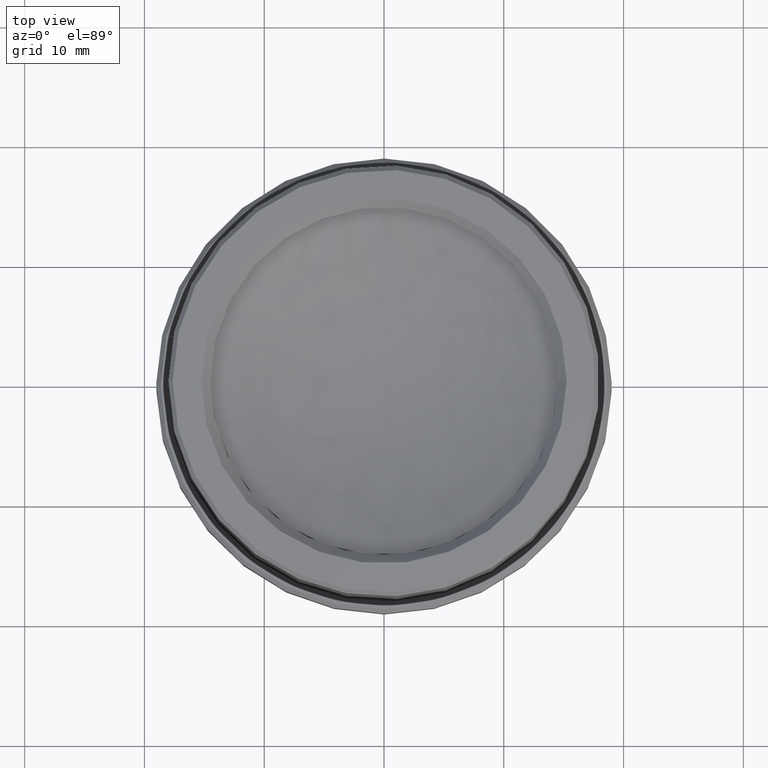
[diagram: clean part render]
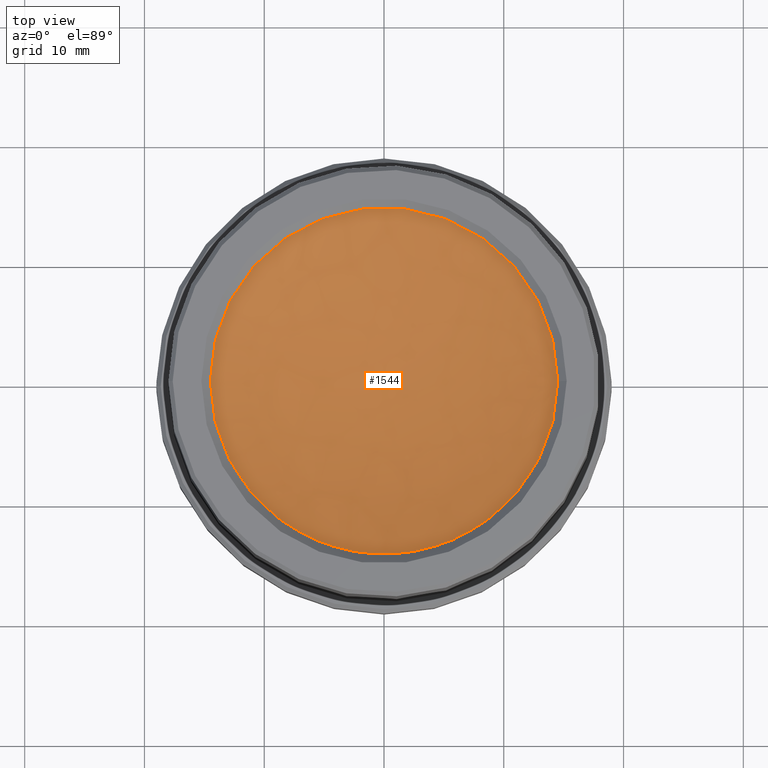
[diagram: same view with one face highlighted and labeled with its STEP entity id]
A machine part, top view. The second image highlights one B-rep face of the part: STEP entity #1544.
In plain terms, the highlighted face is a freeform B-spline surface patch.
Its self-contained STEP definition (entity closure, byte-faithful):
#4 = CARTESIAN_POINT ( 'NONE',  ( 14.59987818712144048, 0.1098719091731127362, 4.598656149939055915 ) ) ;
#11 = CARTESIAN_POINT ( 'NONE',  ( 13.03766404823993241, -6.575546836098879133, 4.598540953532084252 ) ) ;
#13 = CARTESIAN_POINT ( 'NONE',  ( -5.524749319698513794, 13.51436039450258519, 4.598515689413817498 ) ) ;
#21 = CARTESIAN_POINT ( 'NONE',  ( 14.00681559300930346, 4.120100680398201654, 4.598583442719370140 ) ) ;
#29 = CARTESIAN_POINT ( 'NONE',  ( -8.903089966050458770, 11.58088410843833138, 4.598492803776356830 ) ) ;
#34 = CARTESIAN_POINT ( 'NONE',  ( 7.304584570685939582, 12.65072442877180769, 4.598690575416188864 ) ) ;
#43 = CARTESIAN_POINT ( 'NONE',  ( -4.817865857052162859, 13.78559794277003547, 4.598500409480632101 ) ) ;
#46 = CARTESIAN_POINT ( 'NONE',  ( 13.61529103066360591, 5.271427889979172221, 4.598517755665792350 ) ) ;
#52 = CARTESIAN_POINT ( 'NONE',  ( 14.20670203796747444, -3.367909879107047644, 4.598496266177536818 ) ) ;
#55 = CARTESIAN_POINT ( 'NONE',  ( -9.450776052748560474, 11.13093098415130555, 4.598499167541604038 ) ) ;
#63 = CARTESIAN_POINT ( 'NONE',  ( 11.00948562786289564, 9.592351682085356046, 4.598542120305389780 ) ) ;
#68 = CARTESIAN_POINT ( 'NONE',  ( 14.28427918963365073, -3.020500734490506378, 4.598507930116587872 ) ) ;
#81 = CARTESIAN_POINT ( 'NONE',  ( 14.44053562068691754, -2.152572433401920726, 4.598560837239604737 ) ) ;
#110 = CARTESIAN_POINT ( 'NONE',  ( 13.95586297800585740, -4.289328123124835024, 4.598586609276892112 ) ) ;
#123 = CARTESIAN_POINT ( 'NONE',  ( 14.52064795808766817, 1.524627165844218535, 4.598591372268823640 ) ) ;
#174 = CARTESIAN_POINT ( 'NONE',  ( 14.59467593595175039, 0.3982335792210579539, 4.598535094778983812 ) ) ;
#179 = CARTESIAN_POINT ( 'NONE',  ( 9.442031574233713087, -11.13869698450888635, 4.598603359626703302 ) ) ;
#187 = CARTESIAN_POINT ( 'NONE',  ( 14.60005822248919749, 0.09506250477493423390, 4.598693951005267344 ) ) ;
#198 = FACE_OUTER_BOUND ( 'NONE', #1317, .T. ) ;
#203 = CARTESIAN_POINT ( 'NONE',  ( 14.44489739941179884, 2.123041479003394461, 4.598556108481317573 ) ) ;
#215 = CARTESIAN_POINT ( 'NONE',  ( 14.58420798197644963, 0.6802824436189760515, 4.598546234564357960 ) ) ;
#221 = CARTESIAN_POINT ( 'NONE',  ( 12.70457491541069928, -7.209996813314834441, 4.598551395020039401 ) ) ;
#224 = CARTESIAN_POINT ( 'NONE',  ( -3.808755321222869306, 14.10222328882930931, 4.598480782374682718 ) ) ;
#229 = CARTESIAN_POINT ( 'NONE',  ( 12.15130119218949822, 8.093573949494860642, 4.598516295474420090 ) ) ;
#236 = CARTESIAN_POINT ( 'NONE',  ( 12.44438069504907851, -7.655412235732524273, 4.598525398350337134 ) ) ;
#238 = CARTESIAN_POINT ( 'NONE',  ( -5.470940512643740483, 13.53623076055137453, 4.598514701226175561 ) ) ;
#245 = CARTESIAN_POINT ( 'NONE',  ( 13.33872966068041599, 5.949843725076407353, 4.598522857305908929 ) ) ;
#252 = CARTESIAN_POINT ( 'NONE',  ( -13.15038568650589390, -6.414122279579340891, 4.598610133474144490 ) ) ;
#260 = CARTESIAN_POINT ( 'NONE',  ( 13.98037488547468143, 4.208726043841942044, 4.598585988786896728 ) ) ;
#267 = CARTESIAN_POINT ( 'NONE',  ( -10.16774487261977811, 10.47772805272840202, 4.598513358064516332 ) ) ;
#271 = CARTESIAN_POINT ( 'NONE',  ( 13.97652199687717456, 4.221489475240501221, 4.598586020182444223 ) ) ;
#277 = CARTESIAN_POINT ( 'NONE',  ( 14.54444619280368478, -1.283548148800891298, 4.598589392100513429 ) ) ;
#287 = CARTESIAN_POINT ( 'NONE',  ( 0.005160834930813416356, 14.59999908786928025, 4.598516557663532289 ) ) ;
#294 = CARTESIAN_POINT ( 'NONE',  ( 14.23252240926370860, -3.256657079008932865, 4.598495585025937693 ) ) ;
#306 = CARTESIAN_POINT ( 'NONE',  ( 14.58572981244276612, -0.6515799999657583275, 4.598559561514189653 ) ) ;
#308 = CARTESIAN_POINT ( 'NONE',  ( -3.881806759331051460, -14.19726442437174185, 4.598545732425259658 ) ) ;
#319 = CARTESIAN_POINT ( 'NONE',  ( 14.59528607313195359, -0.3724633300664522140, 4.598534800062981986 ) ) ;
#329 = EDGE_CURVE ( 'NONE', #673, #1180, #565, .T. ) ;
#337 = CARTESIAN_POINT ( 'NONE',  ( 14.52490868798957102, -1.480399848870249446, 4.598588877081514426 ) ) ;
#362 = CARTESIAN_POINT ( 'NONE',  ( 0.9248576070312892750, -14.60000000000003340, 4.598516557663528737 ) ) ;
#385 = CARTESIAN_POINT ( 'NONE',  ( 14.59999188274770532, -0.02304323730480819024, 4.598517571693991890 ) ) ;
#392 = CARTESIAN_POINT ( 'NONE',  ( 7.311895011767521879, -12.67356833078919820, 4.598738370409213516 ) ) ;
#400 = CARTESIAN_POINT ( 'NONE',  ( 14.59834573250014245, -0.2272067419942964406, 4.598517024524018559 ) ) ;
#413 = CARTESIAN_POINT ( 'NONE',  ( 14.45125866144301696, 2.079437387572911522, 4.598557007942772223 ) ) ;
#422 = CARTESIAN_POINT ( 'NONE',  ( 13.47040337618714645, -5.631028487070569355, 4.598515997964312874 ) ) ;
#424 = CARTESIAN_POINT ( 'NONE',  ( 14.71761929755720644, 0.06068785505693927856, 4.656514888069945179 ) ) ;
#431 = CARTESIAN_POINT ( 'NONE',  ( 14.59920185898077349, 0.1564029259636597613, 4.598535001784714638 ) ) ;
#437 = CARTESIAN_POINT ( 'NONE',  ( 13.83827608740299908, -4.655893481129402822, 4.598567047210794456 ) ) ;
#439 = CARTESIAN_POINT ( 'NONE',  ( -8.521706113493378254, 11.86451576672056163, 4.598492459333527016 ) ) ;
#449 = CARTESIAN_POINT ( 'NONE',  ( 13.45317217763189355, -5.672146344439530807, 4.598515639794314325 ) ) ;
#451 = CARTESIAN_POINT ( 'NONE',  ( -6.379493726258334441, -13.13637127351659117, 4.598502094489019143 ) ) ;
#455 = CARTESIAN_POINT ( 'NONE',  ( 10.37376514325663734, 10.27355579893149518, 4.598515784245162941 ) ) ;
#465 = CARTESIAN_POINT ( 'NONE',  ( -3.348905923950477259, 14.21865660848581214, 4.598477032157465949 ) ) ;
#473 = CARTESIAN_POINT ( 'NONE',  ( 10.63633095824203778, 10.00280252400942516, 4.598520654622464399 ) ) ;
#478 = CARTESIAN_POINT ( 'NONE',  ( 11.46034044659293727, -9.048713529990788373, 4.598549025147234737 ) ) ;
#480 = CARTESIAN_POINT ( 'NONE',  ( -16.70499046038595026, -15.02309922724385061, -5.778333417743800382 ) ) ;
#487 = CARTESIAN_POINT ( 'NONE',  ( 12.40190531676616814, 7.706142390874858528, 4.598519350502367153 ) ) ;
#491 = CARTESIAN_POINT ( 'NONE',  ( 14.47944028093070479, -1.876462696205670966, 4.598536033749266672 ) ) ;
#497 = CARTESIAN_POINT ( 'NONE',  ( 14.06775755851724874, 3.907076147629254148, 4.598562929168755531 ) ) ;
#501 = CARTESIAN_POINT ( 'NONE',  ( 14.52706625001994567, -1.459047201071298039, 4.598590860625543009 ) ) ;
#517 = CARTESIAN_POINT ( 'NONE',  ( 14.05241491349262084, -3.971890810872934274, 4.598584301100816063 ) ) ;
#530 = CARTESIAN_POINT ( 'NONE',  ( 14.59510481208141996, -0.3792023569436870911, 4.598531232811095215 ) ) ;
#532 = CARTESIAN_POINT ( 'NONE',  ( -5.658037405817819554, -13.45910413111162462, 4.598515592439899713 ) ) ;
#545 = CARTESIAN_POINT ( 'NONE',  ( 13.96246342601231660, -4.267768480523966623, 4.598586691071909982 ) ) ;
#565 = B_SPLINE_CURVE_WITH_KNOTS ( 'NONE', 3,
 ( #1000, #362, #1444, #2072, #1014, #1036, #812, #1472, #1664, #771, #615, #2703, #1461, #392, #2099, #2715, #179, #789, #1235, #1884, #2741, #843, #1749, #964, #1721, #478, #1067, #2755, #1330, #642, #670, #659, #1926, #1298, #2187, #236, #221, #11, #1513, #1703, #2372, #1125, #449, #422, #2155, #1275, #2130, #1948, #1501, #2385, #437, #891, #2174, #1109, #110, #545, #973, #1820, #2669, #517, #1972, #52, #294, #1400, #68, #1181, #1764, #2232, #2031, #2623, #2201, #1372, #1140, #1164, #2611, #1989, #1550, #1777, #930, #81, #1789, #709, #491, #956, #2635, #1805, #2656, #337, #501, #2220, #743, #1341, #277, #2427, #1603, #1357, #721, #1151, #2003, #943, #1593, #1579, #2445, #306, #2245, #2014, #755, #2458, #2470, #2260, #530, #1385, #319, #2552, #400, #623, #2310, #1254, #865, #1921, #385, #1282, #1243, #187, #4, #2093, #1198, #431, #1878, #1061, #1896, #2324, #2539, #2566, #1480, #1468, #2107, #2530, #174, #1046, #1673, #2749, #767, #1684, #215, #1655, #610, #2733, #852, #2682, #2123, #2046, #2514, #2137, #652, #1072, #1714, #1507, #2337, #123, #822, #1911, #2364, #838, #597, #413, #1267, #203, #1031, #1985, #1697, #635, #1492, #2351, #986, #1833, #1086, #2619, #1784, #1939, #2605, #1546, #2150, #1728, #497, #664, #21, #1967, #260, #271, #885, #692, #1117, #2411, #2579, #715, #46, #2631, #1742, #1336, #1293, #2168, #1519, #245, #909, #1955, #2591, #704, #487, #1147, #2195, #937, #1347, #229, #1133, #1980, #1773, #2395, #63, #2380, #473, #1104, #1571, #455, #2211, #1306, #2182, #1999, #34, #899, #2422, #676, #926, #1757, #1532, #1559, #1323, #287 ),
 .UNSPECIFIED., .F., .F.,
 ( 4, 2, 2, 1, 1, 1, 2, 2, 2, 2, 1, 1, 1, 2, 2, 2, 2, 1, 1, 1, 1, 2, 2, 2, 2, 1, 1, 1, 1, 2, 2, 2, 2, 1, 1, 1, 1, 2, 2, 2, 2, 1, 1, 1, 1, 2, 2, 2, 1, 1, 1, 1, 2, 2, 2, 2, 1, 1, 1, 2, 2, 2, 2, 1, 1, 1, 2, 2, 2, 2, 1, 1, 2, 2, 2, 2, 2, 2, 2, 2, 2, 2, 2, 2, 1, 2, 2, 2, 2, 1, 1, 2, 2, 2, 2, 1, 1, 1, 2, 2, 2, 2, 1, 1, 1, 2, 2, 2, 1, 1, 1, 1, 2, 2, 2, 2, 1, 1, 1, 1, 2, 2, 2, 2, 1, 1, 1, 2, 2, 2, 2, 1, 1, 1, 1, 2, 2, 2, 2, 1, 1, 2, 2, 2, 2, 1, 1, 2, 2, 4 ),
 ( 0.000000000000000000, 0.06250000000000052736, 0.09375000000000079103, 0.1093750000000008882, 0.1171875000000009437, 0.1210937500000010270, 0.1230468750000010547, 0.1250000000000010825, 0.1875000000000044131, 0.2187500000000061062, 0.2343750000000069944, 0.2421875000000074662, 0.2460937500000076883, 0.2480468750000077438, 0.2500000000000078271, 0.2812500000000090483, 0.2968750000000096034, 0.3046875000000098255, 0.3085937500000100475, 0.3105468750000101585, 0.3115234375000102141, 0.3120117187500102696, 0.3125000000000103806, 0.3437500000000165978, 0.3593750000000197065, 0.3671875000000212053, 0.3710937500000219269, 0.3730468750000223155, 0.3740234375000224820, 0.3745117187500225375, 0.3750000000000225930, 0.3906250000000258127, 0.3984375000000274780, 0.4023437500000282552, 0.4042968750000286438, 0.4052734375000289213, 0.4057617187500290323, 0.4060058593750290323, 0.4062500000000290323, 0.4218750000000292544, 0.4296875000000293654, 0.4335937500000294209, 0.4355468750000294209, 0.4365234375000294209, 0.4370117187500293654, 0.4372558593750293099, 0.4375000000000293099, 0.4453125000000291989, 0.4492187500000291434, 0.4511718750000291434, 0.4521484375000290878, 0.4526367187500290878, 0.4528808593750290878, 0.4531250000000290878, 0.4609375000000296430, 0.4648437500000299205, 0.4667968750000300315, 0.4677734375000300870, 0.4682617187500301426, 0.4685058593750301981, 0.4687500000000302536, 0.4765625000000310307, 0.4804687500000314748, 0.4824218750000316414, 0.4833984375000317524, 0.4838867187500318634, 0.4841308593750318634, 0.4843750000000318634, 0.4882812500000322520, 0.4902343750000324740, 0.4912109375000325850, 0.4916992187500326406, 0.4919433593750326406, 0.4921875000000326406, 0.4960937500000330846, 0.4980468750000333622, 0.4990234375000334732, 0.5000000000000335287, 0.5019531250000337508, 0.5029296875000338618, 0.5034179687500338618, 0.5039062500000338618, 0.5058593750000340838, 0.5068359375000343059, 0.5073242187500344169, 0.5075683593750344169, 0.5078125000000344169, 0.5117187500000348610, 0.5136718750000350830, 0.5146484375000351941, 0.5151367187500351941, 0.5153808593750351941, 0.5156250000000351941, 0.5234375000000364153, 0.5273437500000369704, 0.5292968750000371925, 0.5302734375000373035, 0.5307617187500374145, 0.5310058593750374145, 0.5312500000000374145, 0.5390625000000383027, 0.5429687500000386358, 0.5449218750000388578, 0.5458984375000389688, 0.5463867187500390799, 0.5466308593750390799, 0.5468750000000390799, 0.5546875000000394129, 0.5585937500000396350, 0.5605468750000398570, 0.5615234375000398570, 0.5620117187500398570, 0.5622558593750398570, 0.5625000000000398570, 0.5781250000000394129, 0.5859375000000391909, 0.5898437500000390799, 0.5917968750000389688, 0.5927734375000388578, 0.5932617187500388578, 0.5935058593750388578, 0.5937500000000388578, 0.6093750000000391909, 0.6171875000000394129, 0.6210937500000394129, 0.6230468750000394129, 0.6240234375000394129, 0.6245117187500394129, 0.6250000000000395239, 0.6562500000000369704, 0.6718750000000357492, 0.6796875000000351941, 0.6835937500000348610, 0.6855468750000347500, 0.6865234375000346390, 0.6870117187500345279, 0.6875000000000344169, 0.7187500000000290878, 0.7343750000000264233, 0.7421875000000250910, 0.7460937500000246470, 0.7480468750000243139, 0.7500000000000239808, 0.8125000000000179856, 0.8437500000000149880, 0.8593750000000134337, 0.8671875000000127676, 0.8710937500000123235, 0.8750000000000119904, 1.000000000000000000 ),
 .UNSPECIFIED. ) ;
#597 = CARTESIAN_POINT ( 'NONE',  ( 14.45980983664423114, 2.019453768701706231, 4.598554121456699839 ) ) ;
#610 = CARTESIAN_POINT ( 'NONE',  ( 14.58314246620638777, 0.7032660545038603717, 4.598560486685258297 ) ) ;
#615 = CARTESIAN_POINT ( 'NONE',  ( 5.532977842985892458, -13.51099747840668996, 4.598515588655430086 ) ) ;
#623 = CARTESIAN_POINT ( 'NONE',  ( 14.59987045275621398, -0.1411392709652482813, 4.598774708344492090 ) ) ;
#628 = CARTESIAN_POINT ( 'NONE',  ( 14.71761847852395988, -0.06068584819828062860, 4.656514476766718147 ) ) ;
#635 = CARTESIAN_POINT ( 'NONE',  ( 14.40983694473248633, 2.351883133133127135, 4.598524106922837973 ) ) ;
#642 = CARTESIAN_POINT ( 'NONE',  ( 12.02519366123476274, -8.280115672775071545, 4.598516102352112611 ) ) ;
#644 = CARTESIAN_POINT ( 'NONE',  ( -10.62985472940839848, -10.00958914160398372, 4.598511271399827294 ) ) ;
#652 = CARTESIAN_POINT ( 'NONE',  ( 14.53649701092979640, 1.361656646653890412, 4.598570843421297738 ) ) ;
#659 = CARTESIAN_POINT ( 'NONE',  ( 12.10864933958182199, -8.157262007454361807, 4.598515951347961206 ) ) ;
#664 = CARTESIAN_POINT ( 'NONE',  ( 14.04068462623736835, 4.003858631365785570, 4.598574894296008964 ) ) ;
#670 = CARTESIAN_POINT ( 'NONE',  ( 12.08099642450160616, -8.198223665794021287, 4.598515688739118090 ) ) ;
#673 = VERTEX_POINT ( 'NONE', #2089 ) ;
#676 = CARTESIAN_POINT ( 'NONE',  ( 5.974420244069295727, 13.32260250755056497, 4.598525391603364376 ) ) ;
#684 = CARTESIAN_POINT ( 'NONE',  ( -10.37506877903946467, -10.27223554369796155, 4.598515616298371356 ) ) ;
#692 = CARTESIAN_POINT ( 'NONE',  ( 13.97228324148846390, 4.235496302352824927, 4.598585970670097112 ) ) ;
#698 = CARTESIAN_POINT ( 'NONE',  ( -5.550268795358989316, 13.50390387812736392, 4.598516141101471888 ) ) ;
#704 = CARTESIAN_POINT ( 'NONE',  ( 12.50468441737850966, 7.537247801394379110, 4.598525187010308102 ) ) ;
#709 = CARTESIAN_POINT ( 'NONE',  ( 14.46237166032539712, -2.005803613829104659, 4.598571864029749712 ) ) ;
#715 = CARTESIAN_POINT ( 'NONE',  ( 13.68329816016409417, 5.093517662225088394, 4.598524102733225760 ) ) ;
#721 = CARTESIAN_POINT ( 'NONE',  ( 14.57577437227053885, -0.8382588015622581823, 4.598436312989669261 ) ) ;
#743 = CARTESIAN_POINT ( 'NONE',  ( 14.52857055771875316, -1.443983142385591334, 4.598591413070635348 ) ) ;
#755 = CARTESIAN_POINT ( 'NONE',  ( 14.59229614148406107, -0.4671391039210096574, 4.598392477685607993 ) ) ;
#767 = CARTESIAN_POINT ( 'NONE',  ( 14.58661051086592764, 0.6228329121241924504, 4.598463341183516739 ) ) ;
#771 = CARTESIAN_POINT ( 'NONE',  ( 5.475757083107200884, -13.53428722546369656, 4.598514740115034805 ) ) ;
#789 = CARTESIAN_POINT ( 'NONE',  ( 9.714614067614711246, -10.90366322145470157, 4.598558952056473359 ) ) ;
#790 = CARTESIAN_POINT ( 'NONE',  ( -0.7557905240756795928, -7.962066063192722254, -3.084813799995199890 ) ) ;
#812 = CARTESIAN_POINT ( 'NONE',  ( 4.785772588909516401, -13.79714993030400194, 4.598510117040799372 ) ) ;
#822 = CARTESIAN_POINT ( 'NONE',  ( 14.50905695736008205, 1.631895972867737798, 4.598542327358439152 ) ) ;
#838 = CARTESIAN_POINT ( 'NONE',  ( 14.46663529036019469, 1.969626311121914997, 4.598548394275542961 ) ) ;
#843 = CARTESIAN_POINT ( 'NONE',  ( 10.28200243449021833, -10.36538926575751773, 4.598515902118306187 ) ) ;
#852 = CARTESIAN_POINT ( 'NONE',  ( 14.57865385398412172, 0.7954434550513076463, 4.598567057436818928 ) ) ;
#857 = CARTESIAN_POINT ( 'NONE',  ( -1.945485862953569622, 14.50117177011284753, 4.598483725740595496 ) ) ;
#865 = CARTESIAN_POINT ( 'NONE',  ( 14.60022961059792124, -0.06147607033885599953, 4.598690322426052468 ) ) ;
#876 = CARTESIAN_POINT ( 'NONE',  ( -10.23051457385850327, 10.41620475945989099, 4.598514739628979164 ) ) ;
#885 = CARTESIAN_POINT ( 'NONE',  ( 13.97394613113320361, 4.230008184486937495, 4.598586006661193437 ) ) ;
#891 = CARTESIAN_POINT ( 'NONE',  ( 13.89001131594188010, -4.498254821046659302, 4.598578124003503298 ) ) ;
#893 = CARTESIAN_POINT ( 'NONE',  ( -11.69589616383864339, 8.954378199259261706, 4.598546527735670963 ) ) ;
#899 = CARTESIAN_POINT ( 'NONE',  ( 6.673619437020220424, 12.98787495384936719, 4.598604667531533075 ) ) ;
#906 = CARTESIAN_POINT ( 'NONE',  ( -11.61649239590120430, -8.857322731627874646, 4.598518817543182813 ) ) ;
#909 = CARTESIAN_POINT ( 'NONE',  ( 13.15549509730953837, 6.350052911780146303, 4.598541788741523639 ) ) ;
#918 = CARTESIAN_POINT ( 'NONE',  ( -5.200547191626570864, 13.64322530676538747, 4.598509210983073636 ) ) ;
#926 = CARTESIAN_POINT ( 'NONE',  ( 5.810366619845394709, 13.39415209635665427, 4.598518424453812870 ) ) ;
#930 = CARTESIAN_POINT ( 'NONE',  ( 14.43958681516419240, -2.158920487092596652, 4.598560297294165267 ) ) ;
#937 = CARTESIAN_POINT ( 'NONE',  ( 12.17532600996995562, 8.057413823774936645, 4.598515792198104357 ) ) ;
#943 = CARTESIAN_POINT ( 'NONE',  ( 14.58111982775881899, -0.7441479333722500478, 4.598563119249733155 ) ) ;
#956 = CARTESIAN_POINT ( 'NONE',  ( 14.50094388600873430, -1.699347010883437425, 4.598543813872716157 ) ) ;
#964 = CARTESIAN_POINT ( 'NONE',  ( 10.68096695478825708, -9.966510240362968176, 4.598524637303798457 ) ) ;
#973 = CARTESIAN_POINT ( 'NONE',  ( 13.96527230864488978, -4.258560666933560057, 4.598586671189314856 ) ) ;
#986 = CARTESIAN_POINT ( 'NONE',  ( 14.34213414800133179, 2.732204264913098424, 4.598513627723116670 ) ) ;
#1000 = CARTESIAN_POINT ( 'NONE',  ( 5.827002495303954976E-15, -14.60000000000001918, 4.598516557663532289 ) ) ;
#1001 = CARTESIAN_POINT ( 'NONE',  ( 14.82466807185832103, 0.08023840636023088502, 4.710272787090389102 ) ) ;
#1014 = CARTESIAN_POINT ( 'NONE',  ( 3.739619642551435863, -14.12130767986584701, 4.598514039342497028 ) ) ;
#1031 = CARTESIAN_POINT ( 'NONE',  ( 14.44360186770952481, 2.131830383762249426, 4.598555597665519024 ) ) ;
#1036 = CARTESIAN_POINT ( 'NONE',  ( 4.437784310984057790, -13.91131965934250125, 4.598511256033604333 ) ) ;
#1046 = CARTESIAN_POINT ( 'NONE',  ( 14.59279663745808087, 0.4506235916064384450, 4.598334191178799379 ) ) ;
#1061 = CARTESIAN_POINT ( 'NONE',  ( 14.59867765104906567, 0.1990997918734438432, 4.598522164425443037 ) ) ;
#1067 = CARTESIAN_POINT ( 'NONE',  ( 11.60429554096610261, -8.863147106256533903, 4.598540347702328113 ) ) ;
#1069 = CARTESIAN_POINT ( 'NONE',  ( -6.479471060926933923, 13.11975610168247819, 4.598531772197307355 ) ) ;
#1072 = CARTESIAN_POINT ( 'NONE',  ( 14.53335265514384034, 1.394994577804812508, 4.598587126184364493 ) ) ;
#1086 = CARTESIAN_POINT ( 'NONE',  ( 14.32536138898303690, 2.818530583862940642, 4.598516013675003400 ) ) ;
#1104 = CARTESIAN_POINT ( 'NONE',  ( 10.48431472637251005, 10.16100667249218859, 4.598516112300371717 ) ) ;
#1109 = CARTESIAN_POINT ( 'NONE',  ( 13.94247529671278762, -4.332745986643472769, 4.598585961238918607 ) ) ;
#1111 = CARTESIAN_POINT ( 'NONE',  ( 9.795696448410657453, 19.86343729836675109, 7.529817564053417733 ) ) ;
#1117 = CARTESIAN_POINT ( 'NONE',  ( 13.91222959121822811, 4.433435505825699785, 4.598584028920881472 ) ) ;
#1125 = CARTESIAN_POINT ( 'NONE',  ( 13.41809859402347449, -5.754930524858421492, 4.598515549341819053 ) ) ;
#1133 = CARTESIAN_POINT ( 'NONE',  ( 12.14553259605667179, 8.102226881916488210, 4.598516446104540911 ) ) ;
#1140 = CARTESIAN_POINT ( 'NONE',  ( 14.36874418141799126, -2.590991106738381511, 4.598514724647301932 ) ) ;
#1147 = CARTESIAN_POINT ( 'NONE',  ( 12.27439057196187022, 7.906168012063783834, 4.598515669360280889 ) ) ;
#1151 = CARTESIAN_POINT ( 'NONE',  ( 14.57794302039320655, -0.8021680141073892489, 4.598499478343522462 ) ) ;
#1164 = CARTESIAN_POINT ( 'NONE',  ( 14.39900607487809658, -2.415126154093653277, 4.598527886044054824 ) ) ;
#1180 = VERTEX_POINT ( 'NONE', #2265 ) ;
#1181 = CARTESIAN_POINT ( 'NONE',  ( 14.30222755262419732, -2.933800977750343097, 4.598513484403876639 ) ) ;
#1198 = CARTESIAN_POINT ( 'NONE',  ( 14.59943256555988711, 0.1405762060369985245, 4.598569324308820150 ) ) ;
#1235 = CARTESIAN_POINT ( 'NONE',  ( 10.02296529432461547, -10.61725217791344633, 4.598525444807497031 ) ) ;
#1243 = CARTESIAN_POINT ( 'NONE',  ( 14.60032989645117674, 0.05122719776266478758, 4.598708781695306058 ) ) ;
#1254 = CARTESIAN_POINT ( 'NONE',  ( 14.60027691212513368, -0.07459434628619443508, 4.598743713427958291 ) ) ;
#1267 = CARTESIAN_POINT ( 'NONE',  ( 14.44682934857233469, 2.109891053569604047, 4.598556703787023636 ) ) ;
#1275 = CARTESIAN_POINT ( 'NONE',  ( 13.48258882773156664, -5.601770122351161341, 4.598516387189569343 ) ) ;
#1277 = CARTESIAN_POINT ( 'NONE',  ( 9.795428370647053740, -19.86338833641407220, 7.529682940397590230 ) ) ;
#1282 = CARTESIAN_POINT ( 'NONE',  ( 14.60001005998349299, 0.02282947533129478512, 4.598514529602607759 ) ) ;
#1288 = CARTESIAN_POINT ( 'NONE',  ( -7.751498988735545659, -12.38144902333919006, 4.598488349552273924 ) ) ;
#1293 = CARTESIAN_POINT ( 'NONE',  ( 13.50535092283066163, 5.546669261855459609, 4.598516091007830653 ) ) ;
#1298 = CARTESIAN_POINT ( 'NONE',  ( 12.12830119365022874, -8.127997741766515460, 4.598516346206202421 ) ) ;
#1300 = CARTESIAN_POINT ( 'NONE',  ( -5.993346080214653426, -13.31410077099671874, 4.598509462464500430 ) ) ;
#1306 = CARTESIAN_POINT ( 'NONE',  ( 9.648435234014279160, 10.99982367728469157, 4.598532052076208743 ) ) ;
#1315 = CARTESIAN_POINT ( 'NONE',  ( -14.22600895049310665, 3.797043170813221735, 4.598637271522230563 ) ) ;
#1317 = EDGE_LOOP ( 'NONE', ( #2305, #2021 ) ) ;
#1323 = CARTESIAN_POINT ( 'NONE',  ( 1.855219952985504461, 14.59934512551880204, 4.598516557663524296 ) ) ;
#1330 = CARTESIAN_POINT ( 'NONE',  ( 11.91158769263557815, -8.443759446720951800, 4.598520065576453320 ) ) ;
#1332 = CARTESIAN_POINT ( 'NONE',  ( 0.005160834930813416356, 14.59999908786928025, 4.598516557663532289 ) ) ;
#1336 = CARTESIAN_POINT ( 'NONE',  ( 13.51493708129610383, 5.523307501489087556, 4.598515807744258055 ) ) ;
#1341 = CARTESIAN_POINT ( 'NONE',  ( 14.52868564400128726, -1.442830669677581445, 4.598591458901132967 ) ) ;
#1347 = CARTESIAN_POINT ( 'NONE',  ( 12.16092542318562408, 8.079105137932735659, 4.598516076989156431 ) ) ;
#1357 = CARTESIAN_POINT ( 'NONE',  ( 14.57106247607942784, -0.9138123544211731453, 4.598320475530830009 ) ) ;
#1372 = CARTESIAN_POINT ( 'NONE',  ( 14.34574413573452567, -2.716282782857819100, 4.598518593469777649 ) ) ;
#1385 = CARTESIAN_POINT ( 'NONE',  ( 14.59525915230384108, -0.3734320472386356005, 4.598533968914095382 ) ) ;
#1400 = CARTESIAN_POINT ( 'NONE',  ( 14.26763146430691442, -3.097871062141345888, 4.598502639177803886 ) ) ;
#1433 = CARTESIAN_POINT ( 'NONE',  ( -0.7556830657966651099, 7.962329365778529677, -3.084759836450533754 ) ) ;
#1444 = CARTESIAN_POINT ( 'NONE',  ( 1.864606321380882337, -14.51194095215089241, 4.598518634418997664 ) ) ;
#1461 = CARTESIAN_POINT ( 'NONE',  ( 6.469028434235512215, -13.12317483191322331, 4.598532120289278602 ) ) ;
#1468 = CARTESIAN_POINT ( 'NONE',  ( 14.59615945515261437, 0.3360248062738969699, 4.598529468442754897 ) ) ;
#1472 = CARTESIAN_POINT ( 'NONE',  ( 5.189025846751218474, -13.64772040085023619, 4.598511627157776616 ) ) ;
#1480 = CARTESIAN_POINT ( 'NONE',  ( 14.59643094318702872, 0.3235402217124055402, 4.598522536529447535 ) ) ;
#1492 = CARTESIAN_POINT ( 'NONE',  ( 14.37946219378216739, 2.528712365064517353, 4.598512215455499152 ) ) ;
#1501 = CARTESIAN_POINT ( 'NONE',  ( 13.68203370676121899, -5.100934578228423888, 4.598532890076439728 ) ) ;
#1507 = CARTESIAN_POINT ( 'NONE',  ( 14.53102396274263164, 1.419106311663875575, 4.598592355606015758 ) ) ;
#1513 = CARTESIAN_POINT ( 'NONE',  ( 13.13914948876976396, -6.369635024762413167, 4.598532714347882688 ) ) ;
#1515 = CARTESIAN_POINT ( 'NONE',  ( -10.29213913568894156, 10.35532593228592901, 4.598516089381140759 ) ) ;
#1519 = CARTESIAN_POINT ( 'NONE',  ( 13.49488008411694473, 5.572095227188409439, 4.598516459231621667 ) ) ;
#1526 = CARTESIAN_POINT ( 'NONE',  ( 5.079410201876019215, 26.12303028828821994, 14.64494250433468991 ) ) ;
#1532 = CARTESIAN_POINT ( 'NONE',  ( 5.647623285958853323, 13.46358435775057316, 4.598515546763811912 ) ) ;
#1540 = CARTESIAN_POINT ( 'NONE',  ( -10.35267085358242056, -10.29480618696794814, 4.598516093987788267 ) ) ;
#1544 = ADVANCED_FACE ( 'N', ( #198 ), #1666, .F. ) ;
#1546 = CARTESIAN_POINT ( 'NONE',  ( 14.23611441306032788, 3.247909892808720222, 4.598495721899409361 ) ) ;
#1550 = CARTESIAN_POINT ( 'NONE',  ( 14.43477159917899577, -2.190906809712339864, 4.598557138255439547 ) ) ;
#1552 = CARTESIAN_POINT ( 'NONE',  ( -12.70124524470914729, -7.264209955207627800, 4.598572236391611945 ) ) ;
#1559 = CARTESIAN_POINT ( 'NONE',  ( 3.765347624285695805, 14.24387884057193432, 4.598548906454317020 ) ) ;
#1560 = B_SPLINE_CURVE_WITH_KNOTS ( 'NONE', 3,
 ( #1332, #2417, #857, #465, #224, #1705, #43, #918, #1950, #238, #13, #698, #1069, #2189, #439, #29, #55, #2359, #1917, #267, #876, #2387, #1515, #893, #1736, #1315, #1974, #2558, #2176, #252, #1552, #1964, #906, #2762, #2575, #644, #1751, #2599, #684, #1540, #1766, #2404, #1288, #2145, #1723, #451, #1300, #2158, #2658, #532, #1791, #308, #2625, #2637 ),
 .UNSPECIFIED., .F., .F.,
 ( 4, 2, 2, 1, 1, 1, 2, 2, 2, 2, 1, 1, 1, 2, 2, 2, 2, 2, 2, 2, 1, 1, 1, 2, 2, 2, 2, 1, 1, 1, 2, 2, 4 ),
 ( 0.000000000000000000, 0.06250000000000098532, 0.09375000000000145717, 0.1093750000000017208, 0.1171875000000018596, 0.1210937500000019568, 0.1230468750000019984, 0.1250000000000020262, 0.1875000000000020539, 0.2187500000000021649, 0.2343750000000022204, 0.2421875000000022204, 0.2460937500000022760, 0.2480468750000023037, 0.2500000000000023315, 0.3750000000000041078, 0.5000000000000058842, 0.6250000000000076605, 0.6875000000000085487, 0.7187500000000088818, 0.7343750000000089928, 0.7421875000000091038, 0.7460937500000091038, 0.7480468750000091038, 0.7500000000000091038, 0.8125000000000065503, 0.8437500000000053291, 0.8593750000000046629, 0.8671875000000043299, 0.8710937500000042188, 0.8730468750000041078, 0.8750000000000039968, 1.000000000000000000 ),
 .UNSPECIFIED. ) ;
#1571 = CARTESIAN_POINT ( 'NONE',  ( 10.41812439128811718, 10.22856926958371382, 4.598515668502798803 ) ) ;
#1579 = CARTESIAN_POINT ( 'NONE',  ( 14.58179233965367416, -0.7309776847240618824, 4.598566948159882095 ) ) ;
#1592 = EDGE_CURVE ( 'NONE', #1180, #673, #1560, .T. ) ;
#1593 = CARTESIAN_POINT ( 'NONE',  ( 14.58152615826979748, -0.7362249415392212448, 4.598565870270364897 ) ) ;
#1603 = CARTESIAN_POINT ( 'NONE',  ( 14.56743335949079032, -0.9686796588395431007, 4.598262235846069856 ) ) ;
#1655 = CARTESIAN_POINT ( 'NONE',  ( 14.58357518191215085, 0.6940382050648484791, 4.598555881101388465 ) ) ;
#1664 = CARTESIAN_POINT ( 'NONE',  ( 5.389863934760328767, -13.56892982325942043, 4.598513584029625179 ) ) ;
#1666 =( BOUNDED_SURFACE ( )  B_SPLINE_SURFACE ( 3, 3, ( 
 ( #2545, #628, #424, #1001 ),
 ( #1849, #790, #1433, #2287 ),
 ( #1277, #480, #1929, #1111 ),
 ( #2374, #2586, #2613, #1526 ) ),
 .UNSPECIFIED., .F., .F., .F. ) 
 B_SPLINE_SURFACE_WITH_KNOTS ( ( 4, 4 ),
 ( 4, 4 ),
 ( 0.000000000000000000, 1.000000000000000000 ),
 ( 0.000000000000000000, 1.000000000000000000 ),
 .UNSPECIFIED. ) 
 GEOMETRIC_REPRESENTATION_ITEM ( )  RATIONAL_B_SPLINE_SURFACE ( (
 ( 1.000000000000000000, 0.4407231842223125473, 0.4407231842223125473, 1.000000000000000000),
 ( 0.9298291696306701937, 0.4097972724224177576, 0.4097972724224177576, 0.9298291696306701937),
 ( 0.9298291696306701937, 0.4097972724224177576, 0.4097972724224177576, 0.9298291696306701937),
 ( 1.000000000000000000, 0.4407231842223125473, 0.4407231842223125473, 1.000000000000000000) ) ) 
 REPRESENTATION_ITEM ( '' )  SURFACE ( )  );
#1673 = CARTESIAN_POINT ( 'NONE',  ( 14.58966277534749523, 0.5404924056163047386, 4.598339450891494096 ) ) ;
#1684 = CARTESIAN_POINT ( 'NONE',  ( 14.58558046413185849, 0.6487889845125435206, 4.598508591486516472 ) ) ;
#1697 = CARTESIAN_POINT ( 'NONE',  ( 14.42723343899189814, 2.242148033600020796, 4.598546297546316275 ) ) ;
#1703 = CARTESIAN_POINT ( 'NONE',  ( 13.27879105948209926, -6.070105602570808223, 4.598522267662723095 ) ) ;
#1705 = CARTESIAN_POINT ( 'NONE',  ( -4.483926357760908310, 13.89634345277851857, 4.598492901890114837 ) ) ;
#1714 = CARTESIAN_POINT ( 'NONE',  ( 14.53196142113682043, 1.409440534987452809, 4.598590758201589246 ) ) ;
#1721 = CARTESIAN_POINT ( 'NONE',  ( 11.00861611448035937, -9.602055943815289041, 4.598555877556687932 ) ) ;
#1723 = CARTESIAN_POINT ( 'NONE',  ( -6.703220852225666881, -12.97242518085064589, 4.598496700223203781 ) ) ;
#1728 = CARTESIAN_POINT ( 'NONE',  ( 14.11947704584689589, 3.717371658245408828, 4.598538482937649441 ) ) ;
#1736 = CARTESIAN_POINT ( 'NONE',  ( -12.77527895829355309, 7.320423384909481079, 4.598628564843605382 ) ) ;
#1742 = CARTESIAN_POINT ( 'NONE',  ( 13.53703185308878076, 5.469062982774051562, 4.598515414093916398 ) ) ;
#1749 = CARTESIAN_POINT ( 'NONE',  ( 10.30241777770062939, -10.34510269558679063, 4.598516052686015598 ) ) ;
#1751 = CARTESIAN_POINT ( 'NONE',  ( -10.48196139553550310, -10.16340584295913629, 4.598513541643919567 ) ) ;
#1757 = CARTESIAN_POINT ( 'NONE',  ( 5.700698364048802702, 13.44118877265662526, 4.598515842362912664 ) ) ;
#1764 = CARTESIAN_POINT ( 'NONE',  ( 14.31084620785334316, -2.891345337199450416, 4.598515434870126484 ) ) ;
#1766 = CARTESIAN_POINT ( 'NONE',  ( -9.670634174814102479, -10.97797745541410919, 4.598531395286896917 ) ) ;
#1773 = CARTESIAN_POINT ( 'NONE',  ( 11.61880639323916142, 8.853979710955119486, 4.598554796025555724 ) ) ;
#1777 = CARTESIAN_POINT ( 'NONE',  ( 14.43815674440999608, -2.168466383515725848, 4.598559439994700959 ) ) ;
#1784 = CARTESIAN_POINT ( 'NONE',  ( 14.32124167308434970, 2.839374412280522009, 4.598516423009336940 ) ) ;
#1789 = CARTESIAN_POINT ( 'NONE',  ( 14.44082463669814409, -2.150637090886601044, 4.598560999099341906 ) ) ;
#1791 = CARTESIAN_POINT ( 'NONE',  ( -5.628637839986811997, -13.47142367939848384, 4.598516101807864409 ) ) ;
#1805 = CARTESIAN_POINT ( 'NONE',  ( 14.51623117734091650, -1.563023562408588418, 4.598571995774973331 ) ) ;
#1820 = CARTESIAN_POINT ( 'NONE',  ( 13.96714049369379218, -4.252429247737526730, 4.598586645381999460 ) ) ;
#1833 = CARTESIAN_POINT ( 'NONE',  ( 14.33104717266998485, 2.789535593759262078, 4.598515307784674988 ) ) ;
#1849 = CARTESIAN_POINT ( 'NONE',  ( 13.28912006616552510, -10.52736241577735399, 3.968278495462580935 ) ) ;
#1878 = CARTESIAN_POINT ( 'NONE',  ( 14.59906968093884494, 0.1660946246003418558, 4.598522953053018725 ) ) ;
#1884 = CARTESIAN_POINT ( 'NONE',  ( 10.17466308940170094, -10.47103736317548872, 4.598517305997883220 ) ) ;
#1896 = CARTESIAN_POINT ( 'NONE',  ( 14.59820401862030259, 0.2270130761167677425, 4.598486203998992217 ) ) ;
#1911 = CARTESIAN_POINT ( 'NONE',  ( 14.48753909482270430, 1.809908362052520037, 4.598533160378281970 ) ) ;
#1917 = CARTESIAN_POINT ( 'NONE',  ( -10.01987180072262262, 10.62006956950119374, 4.598510099697170617 ) ) ;
#1921 = CARTESIAN_POINT ( 'NONE',  ( 14.60008842026723208, -0.03496040013017491510, 4.598577720056177931 ) ) ;
#1926 = CARTESIAN_POINT ( 'NONE',  ( 12.12044751688426203, -8.139703855555847412, 4.598516173113670114 ) ) ;
#1929 = CARTESIAN_POINT ( 'NONE',  ( -16.70478770442091232, 15.02359603559000512, -5.778231597477589077 ) ) ;
#1939 = CARTESIAN_POINT ( 'NONE',  ( 14.32016701465472153, 2.844788762332025822, 4.598516512928760847 ) ) ;
#1948 = CARTESIAN_POINT ( 'NONE',  ( 13.59147949506452235, -5.339079751078457114, 4.598520829210501759 ) ) ;
#1950 = CARTESIAN_POINT ( 'NONE',  ( -5.390095980501177664, 13.56880894395838233, 4.598513159345694490 ) ) ;
#1955 = CARTESIAN_POINT ( 'NONE',  ( 12.82266396006901843, 6.985551110066150926, 4.598541063025985309 ) ) ;
#1964 = CARTESIAN_POINT ( 'NONE',  ( -11.90319639547312036, -8.467968472094515420, 4.598530143800250158 ) ) ;
#1967 = CARTESIAN_POINT ( 'NONE',  ( 13.98928892826854486, 4.179047242896213099, 4.598585567674813745 ) ) ;
#1972 = CARTESIAN_POINT ( 'NONE',  ( 14.12082646321523427, -3.717562411456330373, 4.598523237767776273 ) ) ;
#1974 = CARTESIAN_POINT ( 'NONE',  ( -14.59800175173414871, 1.907730670386256877, 4.598487863133176923 ) ) ;
#1980 = CARTESIAN_POINT ( 'NONE',  ( 11.89258932964553495, 8.481030627042940750, 4.598523697438711366 ) ) ;
#1985 = CARTESIAN_POINT ( 'NONE',  ( 14.44276561801830994, 2.137480469216634482, 4.598555179691572903 ) ) ;
#1989 = CARTESIAN_POINT ( 'NONE',  ( 14.42780579907284455, -2.236453975918975434, 4.598551559660254640 ) ) ;
#1999 = CARTESIAN_POINT ( 'NONE',  ( 7.714197751249981749, 12.40532928558530301, 4.598737588892504391 ) ) ;
#2003 = CARTESIAN_POINT ( 'NONE',  ( 14.58012325494694217, -0.7630000742022002846, 4.598549528069380443 ) ) ;
#2014 = CARTESIAN_POINT ( 'NONE',  ( 14.59131068973251644, -0.4951297426656787182, 4.598358282153486520 ) ) ;
#2021 = ORIENTED_EDGE ( 'NONE', *, *, #1592, .T. ) ;
#2031 = CARTESIAN_POINT ( 'NONE',  ( 14.31685914766140222, -2.861387757155542833, 4.598516330451549727 ) ) ;
#2046 = CARTESIAN_POINT ( 'NONE',  ( 14.55518160035854613, 1.139863810864722771, 4.598311431283240047 ) ) ;
#2072 = CARTESIAN_POINT ( 'NONE',  ( 3.271269699404350195, -14.23681999598496262, 4.598516272968203644 ) ) ;
#2089 = CARTESIAN_POINT ( 'NONE',  ( 5.827002495303954976E-15, -14.60000000000001918, 4.598516557663532289 ) ) ;
#2093 = CARTESIAN_POINT ( 'NONE',  ( 14.59955038554372564, 0.1328104919973956410, 4.598591598006073866 ) ) ;
#2099 = CARTESIAN_POINT ( 'NONE',  ( 8.502040738088863847, -11.87920194553091413, 4.598729620690471087 ) ) ;
#2107 = CARTESIAN_POINT ( 'NONE',  ( 14.59597076976142027, 0.3444143727746890038, 4.598532847594884565 ) ) ;
#2123 = CARTESIAN_POINT ( 'NONE',  ( 14.55989669196770109, 1.075576195275035341, 4.598244723679559165 ) ) ;
#2130 = CARTESIAN_POINT ( 'NONE',  ( 13.48418142427848743, -5.597938608636184199, 4.598516443801208275 ) ) ;
#2137 = CARTESIAN_POINT ( 'NONE',  ( 14.54240000452673520, 1.296460656138340051, 4.598513430627432008 ) ) ;
#2145 = CARTESIAN_POINT ( 'NONE',  ( -7.340408383868848752, -12.62970390663625153, 4.598488988837364566 ) ) ;
#2150 = CARTESIAN_POINT ( 'NONE',  ( 14.15072522624233819, 3.596051165946785755, 4.598522143079004643 ) ) ;
#2155 = CARTESIAN_POINT ( 'NONE',  ( 13.47772326397647902, -5.613465579743892597, 4.598516221890419864 ) ) ;
#2158 = CARTESIAN_POINT ( 'NONE',  ( -5.798224236801850395, -13.39951051386015379, 4.598513094092036013 ) ) ;
#2168 = CARTESIAN_POINT ( 'NONE',  ( 13.49893399930066273, 5.562269055232003545, 4.598516305276475258 ) ) ;
#2174 = CARTESIAN_POINT ( 'NONE',  ( 13.91494284919911628, -4.420772779704917887, 4.598582945052492654 ) ) ;
#2176 = CARTESIAN_POINT ( 'NONE',  ( -14.23371649385165050, -3.768577236148887621, 4.598662050928647105 ) ) ;
#2182 = CARTESIAN_POINT ( 'NONE',  ( 8.905120214661240041, 11.60967311999278984, 4.598751850125729845 ) ) ;
#2187 = CARTESIAN_POINT ( 'NONE',  ( 12.13132091344151675, -8.123491844945830209, 4.598516419527796550 ) ) ;
#2189 = CARTESIAN_POINT ( 'NONE',  ( -7.332516263904017784, 12.66112039777980947, 4.598503211965155657 ) ) ;
#2195 = CARTESIAN_POINT ( 'NONE',  ( 12.20867790706660116, 8.006884758308634886, 4.598515412343845199 ) ) ;
#2201 = CARTESIAN_POINT ( 'NONE',  ( 14.31840419208001514, -2.853649528590244788, 4.598516494044583958 ) ) ;
#2211 = CARTESIAN_POINT ( 'NONE',  ( 10.35032621942972497, 10.29716583303502020, 4.598516073463125409 ) ) ;
#2220 = CARTESIAN_POINT ( 'NONE',  ( 14.52797142169762523, -1.449995506625158415, 4.598591258539709514 ) ) ;
#2232 = CARTESIAN_POINT ( 'NONE',  ( 14.31506824279095547, -2.870341420597121385, 4.598516113451559306 ) ) ;
#2245 = CARTESIAN_POINT ( 'NONE',  ( 14.58810091687312394, -0.5845961370896337606, 4.598362806266231395 ) ) ;
#2260 = CARTESIAN_POINT ( 'NONE',  ( 14.59486379659972322, -0.3879392328115579547, 4.598524748363741921 ) ) ;
#2265 = CARTESIAN_POINT ( 'NONE',  ( 0.005160834930813416356, 14.59999908786928025, 4.598516557663532289 ) ) ;
#2287 = CARTESIAN_POINT ( 'NONE',  ( 13.28926214423022145, 10.52738836503697861, 3.968349844418292083 ) ) ;
#2305 = ORIENTED_EDGE ( 'NONE', *, *, #329, .T. ) ;
#2310 = CARTESIAN_POINT ( 'NONE',  ( 14.60020975397965159, -0.1142492682887230604, 4.598828055111254365 ) ) ;
#2324 = CARTESIAN_POINT ( 'NONE',  ( 14.59741627950680964, 0.2719104729887535932, 4.598487450880790028 ) ) ;
#2337 = CARTESIAN_POINT ( 'NONE',  ( 14.53036589810097112, 1.425830954832462805, 4.598592717046398270 ) ) ;
#2351 = CARTESIAN_POINT ( 'NONE',  ( 14.36320057708323006, 2.620182591929909766, 4.598510521898784731 ) ) ;
#2359 = CARTESIAN_POINT ( 'NONE',  ( -9.718525912280195911, 10.89982849154665523, 4.598503688832369818 ) ) ;
#2364 = CARTESIAN_POINT ( 'NONE',  ( 14.47966960324225916, 1.872095787682292345, 4.598537987876397892 ) ) ;
#2372 = CARTESIAN_POINT ( 'NONE',  ( 13.34546358179220071, -5.922672342650002975, 4.598517612174562785 ) ) ;
#2374 = CARTESIAN_POINT ( 'NONE',  ( 5.079057644388967674, -26.12296589688641291, 14.64476545653647221 ) ) ;
#2380 = CARTESIAN_POINT ( 'NONE',  ( 10.76250961224315361, 9.866315446307480030, 4.598527963142408304 ) ) ;
#2385 = CARTESIAN_POINT ( 'NONE',  ( 13.80129112835345317, -4.764553097012895755, 4.598557861500962574 ) ) ;
#2387 = CARTESIAN_POINT ( 'NONE',  ( -10.27222622235187188, 10.37507458922380010, 4.598515654252860685 ) ) ;
#2395 = CARTESIAN_POINT ( 'NONE',  ( 11.16696013902584106, 9.408392164763597521, 4.598550343823152531 ) ) ;
#2404 = CARTESIAN_POINT ( 'NONE',  ( -8.939389020573351274, -11.58262101421835055, 4.598500140787218804 ) ) ;
#2411 = CARTESIAN_POINT ( 'NONE',  ( 13.84417507117393242, 4.643003719316055822, 4.598557980108416210 ) ) ;
#2417 = CARTESIAN_POINT ( 'NONE',  ( -0.9778323835660700514, 14.60034655814708593, 4.598516557663525184 ) ) ;
#2422 = CARTESIAN_POINT ( 'NONE',  ( 6.354001935209633523, 13.14871759156703135, 4.598559161929606454 ) ) ;
#2427 = CARTESIAN_POINT ( 'NONE',  ( 14.55486930400639523, -1.146785052611181355, 4.598266534088800483 ) ) ;
#2445 = CARTESIAN_POINT ( 'NONE',  ( 14.58182151674452953, -0.7304201714014421087, 4.598567310601207936 ) ) ;
#2458 = CARTESIAN_POINT ( 'NONE',  ( 14.59361967059260223, -0.4278617122618464386, 4.598459735323519482 ) ) ;
#2470 = CARTESIAN_POINT ( 'NONE',  ( 14.59424046523299801, -0.4088992573148364507, 4.598496257859440384 ) ) ;
#2514 = CARTESIAN_POINT ( 'NONE',  ( 14.54687012397443979, 1.243124013037773423, 4.598442308216528218 ) ) ;
#2530 = CARTESIAN_POINT ( 'NONE',  ( 14.59583813334525537, 0.3500707196280925526, 4.598533958894964080 ) ) ;
#2539 = CARTESIAN_POINT ( 'NONE',  ( 14.59713792866456039, 0.2873733030257433763, 4.598495713184709288 ) ) ;
#2545 = CARTESIAN_POINT ( 'NONE',  ( 14.82466698895749246, -0.08023820857824742747, 4.710272243277784376 ) ) ;
#2552 = CARTESIAN_POINT ( 'NONE',  ( 14.59728594225360077, -0.2922167784740475893, 4.598523970996672539 ) ) ;
#2558 = CARTESIAN_POINT ( 'NONE',  ( -14.60198303227758032, -1.877921049668892728, 4.598545252193856570 ) ) ;
#2566 = CARTESIAN_POINT ( 'NONE',  ( 14.59667461651893738, 0.3113538407889852588, 4.598512969754423807 ) ) ;
#2575 = CARTESIAN_POINT ( 'NONE',  ( -10.91939488677325798, -9.696906648640849724, 4.598508970918134153 ) ) ;
#2579 = CARTESIAN_POINT ( 'NONE',  ( 13.72558527034643561, 4.978276957995587004, 4.598531392975297116 ) ) ;
#2586 = CARTESIAN_POINT ( 'NONE',  ( -29.77247552063479930, -19.75734965919114217, -2.857024851898586348 ) ) ;
#2591 = CARTESIAN_POINT ( 'NONE',  ( 12.70203551918184104, 7.203217177398140159, 4.598535850660108615 ) ) ;
#2599 = CARTESIAN_POINT ( 'NONE',  ( -10.41791409158815895, -10.22877754639447012, 4.598514754546565442 ) ) ;
#2605 = CARTESIAN_POINT ( 'NONE',  ( 14.28196142004067148, 3.036931782356299792, 4.598519420688761628 ) ) ;
#2611 = CARTESIAN_POINT ( 'NONE',  ( 14.41307340881728827, -2.330210529204802317, 4.598538162629867365 ) ) ;
#2613 = CARTESIAN_POINT ( 'NONE',  ( -29.77220886989675463, 19.75800302745155790, -2.856890944868391902 ) ) ;
#2619 = CARTESIAN_POINT ( 'NONE',  ( 14.32289370990370614, 2.831027489431045652, 4.598516267236822053 ) ) ;
#2623 = CARTESIAN_POINT ( 'NONE',  ( 14.31804898288563521, -2.855429322124277025, 4.598516457538647906 ) ) ;
#2625 = CARTESIAN_POINT ( 'NONE',  ( -1.973982975586876076, -14.60000000000002629, 4.598516557663523407 ) ) ;
#2631 = CARTESIAN_POINT ( 'NONE',  ( 13.58014283899738572, 5.361644856498332778, 4.598515694974887325 ) ) ;
#2635 = CARTESIAN_POINT ( 'NONE',  ( 14.50742051851391246, -1.643122727285568851, 4.598553919203985707 ) ) ;
#2637 = CARTESIAN_POINT ( 'NONE',  ( 5.827002495303954976E-15, -14.60000000000001918, 4.598516557663532289 ) ) ;
#2656 = CARTESIAN_POINT ( 'NONE',  ( 14.52040968001618459, -1.524033153591874301, 4.598581505685982229 ) ) ;
#2658 = CARTESIAN_POINT ( 'NONE',  ( -5.714169160349734433, -13.43536688597513873, 4.598514602201371204 ) ) ;
#2669 = CARTESIAN_POINT ( 'NONE',  ( 13.96769875545526141, -4.250596292318891578, 4.598586636502537850 ) ) ;
#2682 = CARTESIAN_POINT ( 'NONE',  ( 14.57237149063967685, 0.8964630362279139009, 4.598235541640196544 ) ) ;
#2703 = CARTESIAN_POINT ( 'NONE',  ( 5.562670569145943489, -13.49879813901964631, 4.598516071331461674 ) ) ;
#2715 = CARTESIAN_POINT ( 'NONE',  ( 8.886406961453891640, -11.59445355830350444, 4.598686076370607445 ) ) ;
#2733 = CARTESIAN_POINT ( 'NONE',  ( 14.58281921642271506, 0.7099903690090410002, 4.598562002181597386 ) ) ;
#2741 = CARTESIAN_POINT ( 'NONE',  ( 10.23913881906430845, -10.40773357110999164, 4.598516123781788423 ) ) ;
#2749 = CARTESIAN_POINT ( 'NONE',  ( 14.58854116784359256, 0.5723134533582584504, 4.598380693512226891 ) ) ;
#2755 = CARTESIAN_POINT ( 'NONE',  ( 11.81073837238411173, -8.583733239526758041, 4.598526792229858273 ) ) ;
#2762 = CARTESIAN_POINT ( 'NONE',  ( -11.15671222015144970, -9.420518124234650514, 4.598510782817026410 ) ) ;